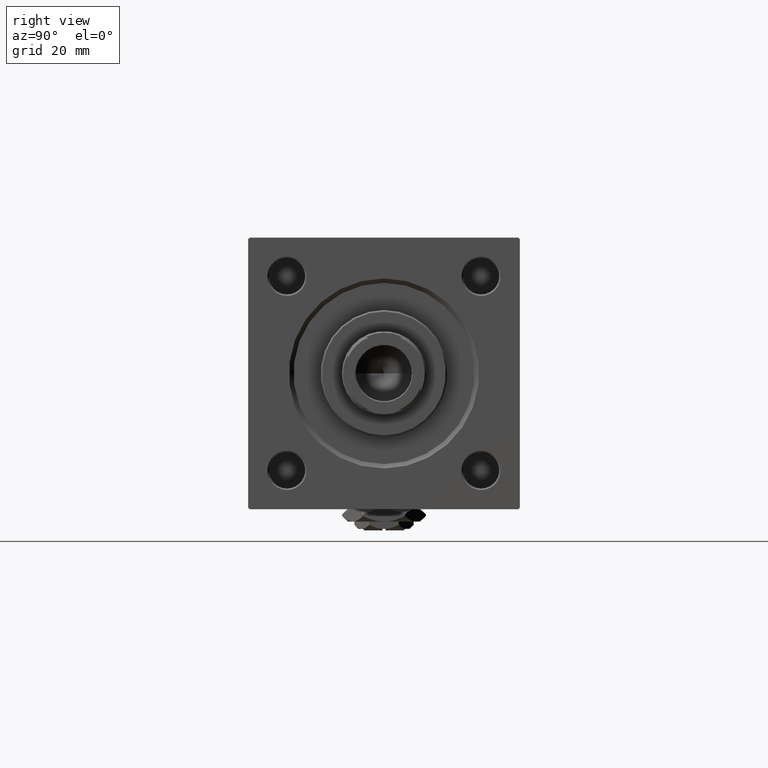
[diagram: clean part render]
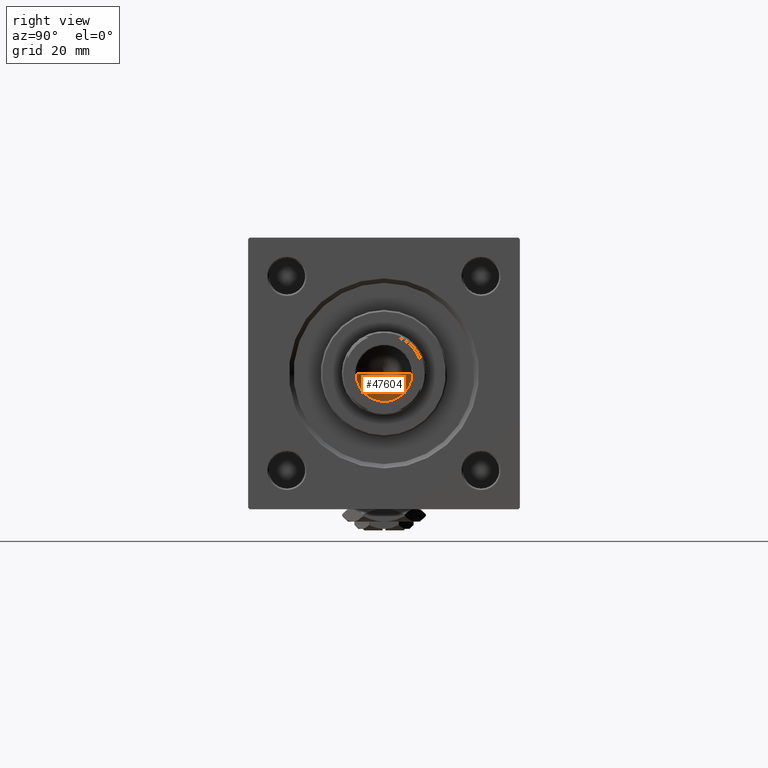
[diagram: same view with one face highlighted and labeled with its STEP entity id]
A machine part, right view. The second image highlights one B-rep face of the part: STEP entity #47604.
In plain terms, the highlighted conical surface has half-angle 59 deg.
Its self-contained STEP definition (entity closure, byte-faithful):
#399 = DIRECTION ( 'NONE',  ( -0.8571673007021117785, 1.049727191138617956E-16, 0.5150380749100550437 ) ) ;
#603 = EDGE_CURVE ( 'NONE', #37901, #31668, #6304, .T. ) ;
#3841 = CARTESIAN_POINT ( 'NONE',  ( -9.249999999999992895, 1.132798289211300712E-15, 114.9999999999999858 ) ) ;
#6304 = LINE ( 'NONE', #10779, #39389 ) ;
#6434 = DIRECTION ( 'NONE',  ( -0.000000000000000000, -0.000000000000000000, 1.000000000000000000 ) ) ;
#10779 = CARTESIAN_POINT ( 'NONE',  ( 9.249999999999992895, 0.000000000000000000, 114.9999999999999858 ) ) ;
#13018 = DIRECTION ( 'NONE',  ( 1.000000000000000000, 0.000000000000000000, 0.000000000000000000 ) ) ;
#13679 = VECTOR ( 'NONE', #399, 1000.000000000000000 ) ;
#14923 = EDGE_CURVE ( 'NONE', #31668, #21918, #33869, .T. ) ;
#16303 = EDGE_CURVE ( 'NONE', #37901, #21918, #23948, .T. ) ;
#16738 = CONICAL_SURFACE ( 'NONE', #37002, 9.249999999999992895, 1.029744258676653423 ) ;
#21401 = ORIENTED_EDGE ( 'NONE', *, *, #603, .T. ) ;
#21918 = VERTEX_POINT ( 'NONE', #47188 ) ;
#23368 = CARTESIAN_POINT ( 'NONE',  ( -9.769621978240258809E-15, 0.000000000000000000, 109.4420392739950501 ) ) ;
#23948 = LINE ( 'NONE', #3841, #13679 ) ;
#25823 = ORIENTED_EDGE ( 'NONE', *, *, #16303, .F. ) ;
#30735 = FACE_OUTER_BOUND ( 'NONE', #47339, .T. ) ;
#31668 = VERTEX_POINT ( 'NONE', #39236 ) ;
#33114 = CARTESIAN_POINT ( 'NONE',  ( 0.000000000000000000, 0.000000000000000000, 114.9999999999999858 ) ) ;
#33869 = CIRCLE ( 'NONE', #40649, 9.249999999999992895 ) ;
#37002 = AXIS2_PLACEMENT_3D ( 'NONE', #50586, #6434, #46878 ) ;
#37901 = VERTEX_POINT ( 'NONE', #23368 ) ;
#39236 = CARTESIAN_POINT ( 'NONE',  ( 9.249999999999992895, 0.000000000000000000, 114.9999999999999858 ) ) ;
#39389 = VECTOR ( 'NONE', #45964, 1000.000000000000000 ) ;
#40649 = AXIS2_PLACEMENT_3D ( 'NONE', #33114, #49256, #13018 ) ;
#43838 = ORIENTED_EDGE ( 'NONE', *, *, #14923, .T. ) ;
#45964 = DIRECTION ( 'NONE',  ( 0.8571673007021117785, 0.000000000000000000, 0.5150380749100550437 ) ) ;
#46878 = DIRECTION ( 'NONE',  ( 1.000000000000000000, 0.000000000000000000, 0.000000000000000000 ) ) ;
#47188 = CARTESIAN_POINT ( 'NONE',  ( -9.249999999999992895, 1.132798289211300712E-15, 114.9999999999999858 ) ) ;
#47339 = EDGE_LOOP ( 'NONE', ( #25823, #21401, #43838 ) ) ;
#47604 = ADVANCED_FACE ( 'NONE', ( #30735 ), #16738, .F. ) ;
#49256 = DIRECTION ( 'NONE',  ( -0.000000000000000000, -0.000000000000000000, 1.000000000000000000 ) ) ;
#50586 = CARTESIAN_POINT ( 'NONE',  ( 0.000000000000000000, 0.000000000000000000, 114.9999999999999858 ) ) ;